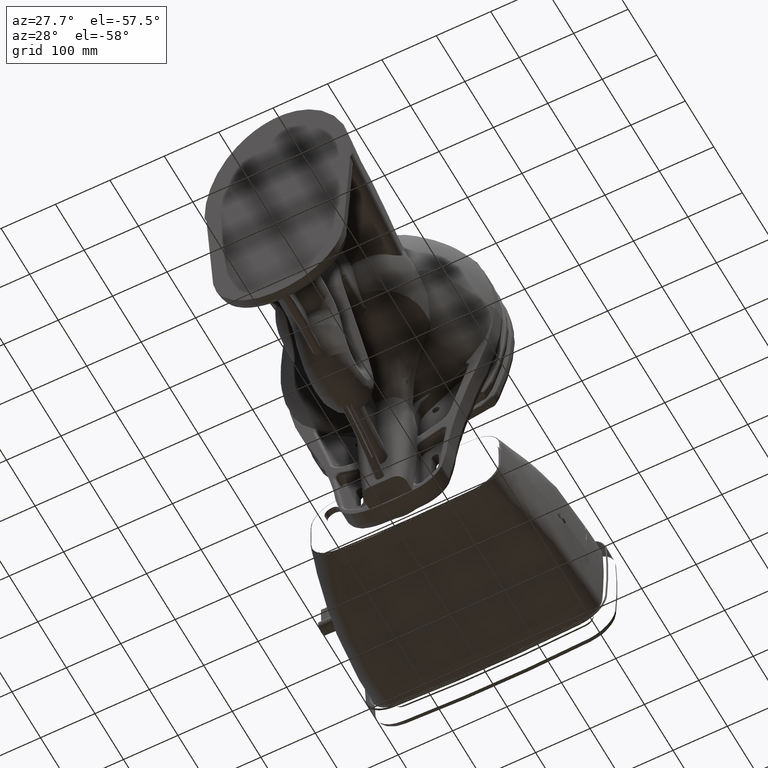
[diagram: clean part render]
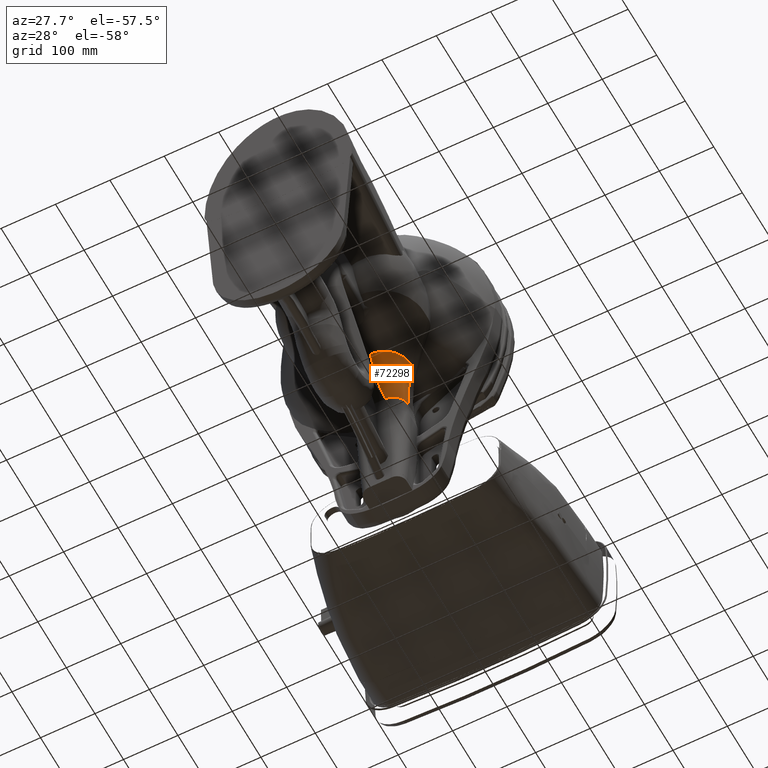
[diagram: same view with one face highlighted and labeled with its STEP entity id]
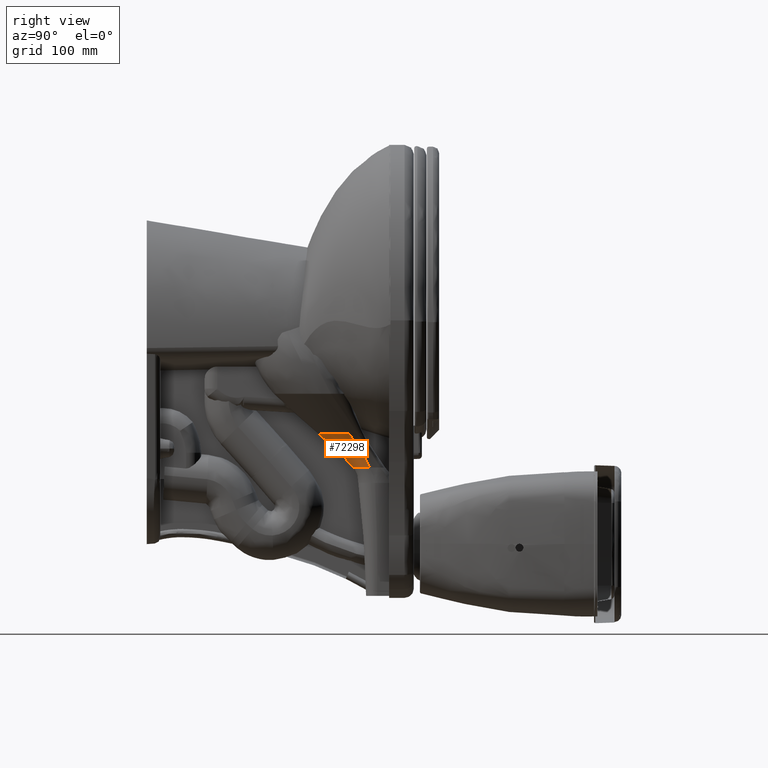
[diagram: same view with one face highlighted and labeled with its STEP entity id]
A machine part, auxiliary view. The second image highlights one B-rep face of the part: STEP entity #72298.
A second angle (right view) of the same face is appended — the face is thin or edge-on in the first view.
In plain terms, the highlighted face is a freeform B-spline surface patch.
Its self-contained STEP definition (entity closure, byte-faithful):
#1406 = CARTESIAN_POINT ( 'NONE',  ( 1.900735595638307000, 6.628144406896851100, 14.05525891619527800 ) ) ;
#8848 = CARTESIAN_POINT ( 'NONE',  ( 1.566650747313976400, 4.462790076188189100, 11.02658824615708600 ) ) ;
#10158 = CARTESIAN_POINT ( 'NONE',  ( 1.224320525543267900, 4.462790076188189100, 10.95937187068937200 ) ) ;
#22232 = CARTESIAN_POINT ( 'NONE',  ( 1.900735595638307000, 6.628144406896851100, 14.05525891619527800 ) ) ;
#28932 = VERTEX_POINT ( 'NONE', #128755 ) ;
#29798 = CARTESIAN_POINT ( 'NONE',  ( 1.900735595638267900, 6.628144406896851100, 14.24453760694684900 ) ) ;
#33589 = B_SPLINE_CURVE_WITH_KNOTS ( 'NONE', 2,
 ( #173867, #67096, #187886 ),
 .UNSPECIFIED., .F., .F.,
 ( 3, 3 ),
 ( 0.0000000000000000000, 1.000000000000000000 ),
 .UNSPECIFIED. ) ;
#37073 = CARTESIAN_POINT ( 'NONE',  ( 2.843397971293582800, 4.462790076188189100, 12.92077953330511900 ) ) ;
#38402 = CARTESIAN_POINT ( 'NONE',  ( 2.190977970619964100, 4.462790076188184700, 11.35872125842755800 ) ) ;
#38867 = CARTESIAN_POINT ( 'NONE',  ( 0.8819903086784646200, 4.462790076188189100, 10.95937187068976500 ) ) ;
#45514 = CARTESIAN_POINT ( 'NONE',  ( 1.862790929895984400, 6.628144406896851100, 13.86598022212008100 ) ) ;
#46826 = EDGE_CURVE ( 'NONE', #82584, #58492, #167972, .T. ) ;
#48716 = B_SPLINE_SURFACE_WITH_KNOTS ( 'NONE', 9, 2, ( 
 ( #141627, #189724, #142294 ),
 ( #98282, #113634, #22232 ),
 ( #188387, #64945, #190372 ),
 ( #114965, #147581, #191056 ),
 ( #145620, #161622, #54202 ),
 ( #70241, #115626, #132226 ),
 ( #98945, #99602, #116266 ),
 ( #8848, #160973, #130239 ),
 ( #10158, #146281, #144940 ),
 ( #38867, #160318, #69578 ) ),
 .UNSPECIFIED., .F., .F., .F.,
 ( 10, 10 ),
 ( 3, 3 ),
 ( 1.000000000000000000, 2.000000000000000000 ),
 ( 0.0000000000000000000, 1.000000000000000000 ),
 .UNSPECIFIED. ) ;
#49045 = CARTESIAN_POINT ( 'NONE',  ( 2.843397971293582800, 4.462790076188189100, 12.92077953330511900 ) ) ;
#54202 = CARTESIAN_POINT ( 'NONE',  ( 1.675391338648779800, 6.628144406896851100, 13.52219656041653600 ) ) ;
#58492 = VERTEX_POINT ( 'NONE', #195065 ) ;
#60185 = CARTESIAN_POINT ( 'NONE',  ( 1.675391338648779800, 6.628144406896851100, 13.52219656041653600 ) ) ;
#61724 = EDGE_LOOP ( 'NONE', ( #146660, #196446, #108562, #113838 ) ) ;
#62904 = CARTESIAN_POINT ( 'NONE',  ( 0.8819903086784646200, 4.462790076188190000, 10.95937187068976500 ) ) ;
#64945 = CARTESIAN_POINT ( 'NONE',  ( 2.128113220894567000, 5.437703543322047800, 13.15515668796456900 ) ) ;
#67096 = CARTESIAN_POINT ( 'NONE',  ( 0.5723277371178741000, 5.437703543322047800, 12.21988420375393700 ) ) ;
#67117 = CARTESIAN_POINT ( 'NONE',  ( 1.566650747313979200, 4.462790076188184700, 11.02658824615708300 ) ) ;
#67296 = B_SPLINE_CURVE_WITH_KNOTS ( 'NONE', 9,
 ( #122236, #182308, #184292, #197642, #122889, #60185, #106226, #45514, #1406, #106868 ),
 .UNSPECIFIED., .F., .F.,
 ( 10, 10 ),
 ( 1.000000000000000000, 2.000000000000000000 ),
 .UNSPECIFIED. ) ;
#68441 = CARTESIAN_POINT ( 'NONE',  ( 0.8819903086784646200, 4.462790076188190000, 10.95937187068976500 ) ) ;
#69578 = CARTESIAN_POINT ( 'NONE',  ( 0.8035320409466141200, 6.628144406896851100, 13.18291729572007900 ) ) ;
#70241 = CARTESIAN_POINT ( 'NONE',  ( 2.190977970619961000, 4.462790076188189100, 11.35872125842756100 ) ) ;
#72298 = ADVANCED_FACE ( 'NONE', ( #174729 ), #48716, .T. ) ;
#82584 = VERTEX_POINT ( 'NONE', #62904 ) ;
#98282 = CARTESIAN_POINT ( 'NONE',  ( 2.843397971293622400, 4.462790076188189100, 12.57844931644055300 ) ) ;
#98945 = CARTESIAN_POINT ( 'NONE',  ( 1.893897611881771600, 4.462790076188189100, 11.16102104411220500 ) ) ;
#99602 = CARTESIAN_POINT ( 'NONE',  ( 1.391221661004921500, 5.437703543322047800, 12.32149402697323000 ) ) ;
#102739 = EDGE_CURVE ( 'NONE', #82584, #28932, #33589, .T. ) ;
#106226 = CARTESIAN_POINT ( 'NONE',  ( 1.786901567512047200, 6.628144406896851100, 13.68539499498819000 ) ) ;
#106868 = CARTESIAN_POINT ( 'NONE',  ( 1.900735595638267900, 6.628144406896851100, 14.24453760694684900 ) ) ;
#108562 = ORIENTED_EDGE ( 'NONE', *, *, #46826, .F. ) ;
#110460 = CARTESIAN_POINT ( 'NONE',  ( 2.184649789531969000, 5.437703543322047800, 13.70185591022637800 ) ) ;
#113634 = CARTESIAN_POINT ( 'NONE',  ( 2.184649789532008100, 5.437703543322047800, 13.42850630223582800 ) ) ;
#113838 = ORIENTED_EDGE ( 'NONE', *, *, #102739, .T. ) ;
#114965 = CARTESIAN_POINT ( 'NONE',  ( 2.641748797869251800, 4.462790076188189100, 11.90887223010275700 ) ) ;
#115022 = VERTEX_POINT ( 'NONE', #29798 ) ;
#115626 = CARTESIAN_POINT ( 'NONE',  ( 1.637657036368031800, 5.437703543322047800, 12.46740143542519900 ) ) ;
#116266 = CARTESIAN_POINT ( 'NONE',  ( 1.366122485178149500, 6.628144406896851100, 13.27826213578701000 ) ) ;
#118942 = B_SPLINE_CURVE_WITH_KNOTS ( 'NONE', 2,
 ( #140434, #110460, #49045 ),
 .UNSPECIFIED., .F., .F.,
 ( 3, 3 ),
 ( 0.0000000000000000000, 1.000000000000000000 ),
 .UNSPECIFIED. ) ;
#122236 = CARTESIAN_POINT ( 'NONE',  ( 0.8035320409466140100, 6.628144406896851100, 13.18291729572007900 ) ) ;
#122889 = CARTESIAN_POINT ( 'NONE',  ( 1.532907249146929300, 6.628144406896851100, 13.38433335099449000 ) ) ;
#128755 = CARTESIAN_POINT ( 'NONE',  ( 0.8035320409466140100, 6.628144406896851100, 13.18291729572007900 ) ) ;
#129788 = CARTESIAN_POINT ( 'NONE',  ( 1.893897611881774700, 4.462790076188184700, 11.16102104411220200 ) ) ;
#130239 = CARTESIAN_POINT ( 'NONE',  ( 1.183134310434527800, 6.628144406896851100, 13.20836544426653500 ) ) ;
#132226 = CARTESIAN_POINT ( 'NONE',  ( 1.532907249146929300, 6.628144406896851100, 13.38433335099449000 ) ) ;
#138807 = EDGE_CURVE ( 'NONE', #28932, #115022, #67296, .T. ) ;
#140434 = CARTESIAN_POINT ( 'NONE',  ( 1.900735595638267900, 6.628144406896851100, 14.24453760694684900 ) ) ;
#141627 = CARTESIAN_POINT ( 'NONE',  ( 2.843397971293582800, 4.462790076188189100, 12.92077953330511900 ) ) ;
#142294 = CARTESIAN_POINT ( 'NONE',  ( 1.900735595638267900, 6.628144406896851100, 14.24453760694684900 ) ) ;
#144940 = CARTESIAN_POINT ( 'NONE',  ( 0.9927079134051969300, 6.628144406896851100, 13.17667934315866200 ) ) ;
#145134 = CARTESIAN_POINT ( 'NONE',  ( 2.641748797869256200, 4.462790076188184700, 11.90887223010275200 ) ) ;
#145620 = CARTESIAN_POINT ( 'NONE',  ( 2.444048583558307500, 4.462790076188189100, 11.61179187136141900 ) ) ;
#146281 = CARTESIAN_POINT ( 'NONE',  ( 0.8450886216653543700, 5.437703543322047800, 12.19697808461535400 ) ) ;
#146660 = ORIENTED_EDGE ( 'NONE', *, *, #138807, .T. ) ;
#147581 = CARTESIAN_POINT ( 'NONE',  ( 2.015040027305748300, 5.437703543322047800, 12.89515772206771700 ) ) ;
#157861 = CARTESIAN_POINT ( 'NONE',  ( 2.444048583558311000, 4.462790076188184700, 11.61179187136141300 ) ) ;
#158521 = CARTESIAN_POINT ( 'NONE',  ( 1.224320525543270100, 4.462790076188184700, 10.95937187068936300 ) ) ;
#160318 = CARTESIAN_POINT ( 'NONE',  ( 0.5723277371178741000, 5.437703543322047800, 12.21988420375393700 ) ) ;
#160973 = CARTESIAN_POINT ( 'NONE',  ( 1.122494267817519800, 5.437703543322047800, 12.23048921773425200 ) ) ;
#161622 = CARTESIAN_POINT ( 'NONE',  ( 1.849105101988346700, 5.437703543322047800, 12.66185978577598400 ) ) ;
#167972 = B_SPLINE_CURVE_WITH_KNOTS ( 'NONE', 9,
 ( #68441, #158521, #67117, #129788, #38402, #157861, #145134, #188590, #175212, #37073 ),
 .UNSPECIFIED., .F., .F.,
 ( 10, 10 ),
 ( 0.0000000000000000000, 0.07811932664229719000 ),
 .UNSPECIFIED. ) ;
#173867 = CARTESIAN_POINT ( 'NONE',  ( 0.8819903086784646200, 4.462790076188190000, 10.95937187068976500 ) ) ;
#174729 = FACE_OUTER_BOUND ( 'NONE', #61724, .T. ) ;
#175212 = CARTESIAN_POINT ( 'NONE',  ( 2.843397971293626800, 4.462790076188184700, 12.57844931644055300 ) ) ;
#180776 = EDGE_CURVE ( 'NONE', #115022, #58492, #118942, .T. ) ;
#182308 = CARTESIAN_POINT ( 'NONE',  ( 0.9927079134051969300, 6.628144406896851100, 13.17667934315866200 ) ) ;
#184292 = CARTESIAN_POINT ( 'NONE',  ( 1.183134310434527800, 6.628144406896851100, 13.20836544426653500 ) ) ;
#187886 = CARTESIAN_POINT ( 'NONE',  ( 0.8035320409466140100, 6.628144406896851100, 13.18291729572007900 ) ) ;
#188387 = CARTESIAN_POINT ( 'NONE',  ( 2.776181595827283700, 4.462790076188189100, 12.23611909466929100 ) ) ;
#188590 = CARTESIAN_POINT ( 'NONE',  ( 2.776181595827288200, 4.462790076188184700, 12.23611909466928800 ) ) ;
#189724 = CARTESIAN_POINT ( 'NONE',  ( 2.184649789531969000, 5.437703543322047800, 13.70185591022637800 ) ) ;
#190372 = CARTESIAN_POINT ( 'NONE',  ( 1.862790929895984400, 6.628144406896851100, 13.86598022212008100 ) ) ;
#191056 = CARTESIAN_POINT ( 'NONE',  ( 1.786901567512047200, 6.628144406896851100, 13.68539499498819000 ) ) ;
#195065 = CARTESIAN_POINT ( 'NONE',  ( 2.843397971293582800, 4.462790076188189100, 12.92077953330511900 ) ) ;
#196446 = ORIENTED_EDGE ( 'NONE', *, *, #180776, .T. ) ;
#197642 = CARTESIAN_POINT ( 'NONE',  ( 1.366122485178149500, 6.628144406896851100, 13.27826213578701000 ) ) ;